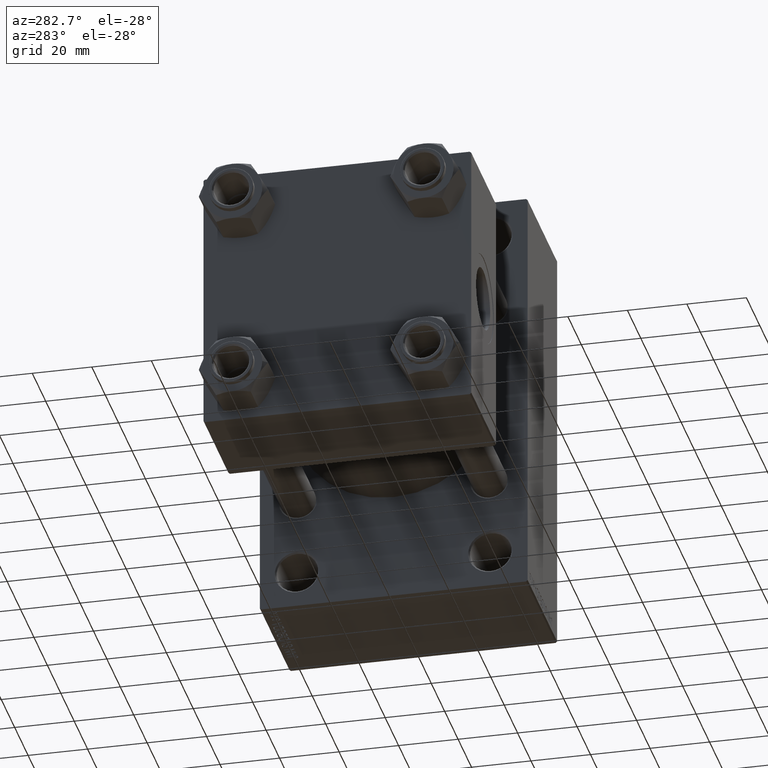
[diagram: clean part render]
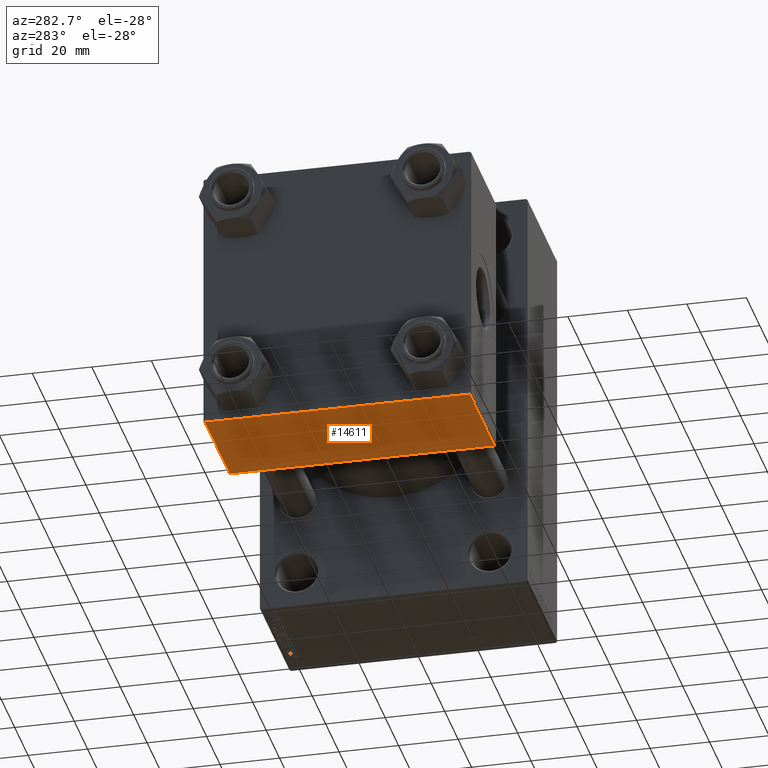
[diagram: same view with one face highlighted and labeled with its STEP entity id]
A machine part, auxiliary view. The second image highlights one B-rep face of the part: STEP entity #14611.
In plain terms, the highlighted planar face has unit normal (0, 0, -1).
Its self-contained STEP definition (entity closure, byte-faithful):
#770 = CARTESIAN_POINT ( 'NONE',  ( 0.000000000000000000, 44.99999999999998579, -44.99999999999998579 ) ) ;
#1473 = DIRECTION ( 'NONE',  ( -1.000000000000000000, 0.000000000000000000, 0.000000000000000000 ) ) ;
#3345 = EDGE_LOOP ( 'NONE', ( #34087, #33235, #40817, #3514 ) ) ;
#3514 = ORIENTED_EDGE ( 'NONE', *, *, #38715, .T. ) ;
#7716 = DIRECTION ( 'NONE',  ( 0.000000000000000000, -1.000000000000000000, -1.541976423090495633E-16 ) ) ;
#7921 = LINE ( 'NONE', #22979, #13213 ) ;
#8917 = EDGE_CURVE ( 'NONE', #43190, #21570, #15334, .T. ) ;
#9039 = LINE ( 'NONE', #20507, #29009 ) ;
#9086 = CARTESIAN_POINT ( 'NONE',  ( 37.00000000000000000, 44.49999999999998579, -44.99999999999998579 ) ) ;
#9971 = DIRECTION ( 'NONE',  ( 1.000000000000000000, 0.000000000000000000, 0.000000000000000000 ) ) ;
#12041 = DIRECTION ( 'NONE',  ( 0.000000000000000000, 1.000000000000000000, 1.541976423090495880E-16 ) ) ;
#12265 = DIRECTION ( 'NONE',  ( 0.000000000000000000, 1.541976423090495880E-16, -1.000000000000000000 ) ) ;
#13213 = VECTOR ( 'NONE', #1473, 1000.000000000000000 ) ;
#13301 = VECTOR ( 'NONE', #35082, 1000.000000000000000 ) ;
#14611 = ADVANCED_FACE ( 'NONE', ( #38939 ), #31782, .T. ) ;
#15334 = LINE ( 'NONE', #770, #13301 ) ;
#15494 = CARTESIAN_POINT ( 'NONE',  ( 0.000000000000000000, 44.49999999999998579, -44.99999999999998579 ) ) ;
#20507 = CARTESIAN_POINT ( 'NONE',  ( 37.00000000000000000, 44.49999999999998579, -44.99999999999998579 ) ) ;
#20608 = CARTESIAN_POINT ( 'NONE',  ( 37.00000000000000000, -44.49999999999995737, -45.00000000000000000 ) ) ;
#21433 = EDGE_CURVE ( 'NONE', #43190, #37036, #9039, .T. ) ;
#21570 = VERTEX_POINT ( 'NONE', #26673 ) ;
#22543 = LINE ( 'NONE', #29707, #36779 ) ;
#22979 = CARTESIAN_POINT ( 'NONE',  ( 0.000000000000000000, -44.49999999999998579, -45.00000000000000000 ) ) ;
#25739 = AXIS2_PLACEMENT_3D ( 'NONE', #42756, #12265, #12041 ) ;
#26673 = CARTESIAN_POINT ( 'NONE',  ( 0.000000000000000000, -44.49999999999995737, -45.00000000000000000 ) ) ;
#28982 = EDGE_CURVE ( 'NONE', #37036, #41673, #22543, .T. ) ;
#29009 = VECTOR ( 'NONE', #9971, 1000.000000000000000 ) ;
#29707 = CARTESIAN_POINT ( 'NONE',  ( 37.00000000000000000, 44.99999999999998579, -44.99999999999998579 ) ) ;
#31782 = PLANE ( 'NONE',  #25739 ) ;
#33235 = ORIENTED_EDGE ( 'NONE', *, *, #21433, .T. ) ;
#34087 = ORIENTED_EDGE ( 'NONE', *, *, #8917, .F. ) ;
#35082 = DIRECTION ( 'NONE',  ( 0.000000000000000000, -1.000000000000000000, -1.541976423090495633E-16 ) ) ;
#36779 = VECTOR ( 'NONE', #7716, 1000.000000000000000 ) ;
#37036 = VERTEX_POINT ( 'NONE', #9086 ) ;
#38715 = EDGE_CURVE ( 'NONE', #41673, #21570, #7921, .T. ) ;
#38939 = FACE_OUTER_BOUND ( 'NONE', #3345, .T. ) ;
#40817 = ORIENTED_EDGE ( 'NONE', *, *, #28982, .T. ) ;
#41673 = VERTEX_POINT ( 'NONE', #20608 ) ;
#42756 = CARTESIAN_POINT ( 'NONE',  ( 37.00000000000000000, 44.99999999999998579, -44.99999999999998579 ) ) ;
#43190 = VERTEX_POINT ( 'NONE', #15494 ) ;